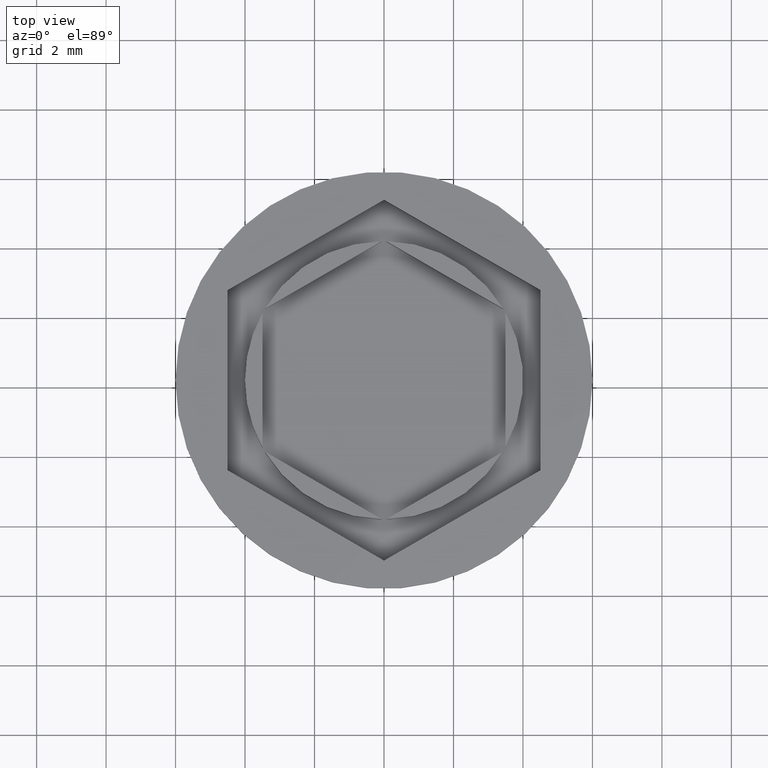
[diagram: clean part render]
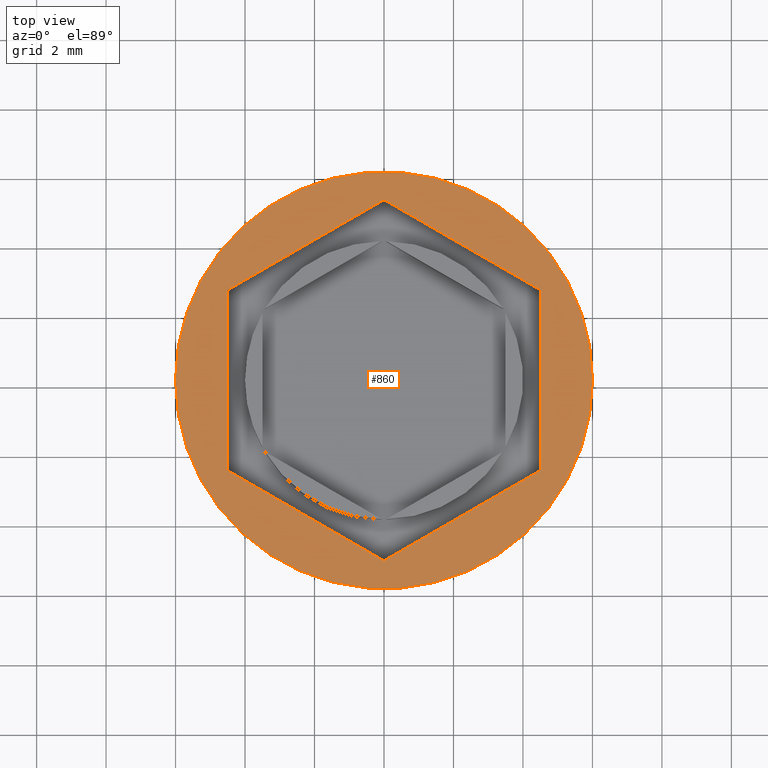
[diagram: same view with one face highlighted and labeled with its STEP entity id]
A machine part, top view. The second image highlights one B-rep face of the part: STEP entity #860.
In plain terms, the highlighted planar face has unit normal (0, -0, 1).
Its self-contained STEP definition (entity closure, byte-faithful):
#82 = CARTESIAN_POINT ( 'NONE',  ( 0.000000000000000000, 0.000000000000000000, 0.000000000000000000 ) ) ;
#89 = CARTESIAN_POINT ( 'NONE',  ( 0.000000000000000000, 5.196152422706632912, 0.000000000000000000 ) ) ;
#103 = ORIENTED_EDGE ( 'NONE', *, *, #769, .F. ) ;
#158 = CARTESIAN_POINT ( 'NONE',  ( -4.500000000000000888, -2.598076211353316456, 0.000000000000000000 ) ) ;
#170 = CARTESIAN_POINT ( 'NONE',  ( 4.500000000000000888, 2.598076211353317344, 0.000000000000000000 ) ) ;
#211 = LINE ( 'NONE', #1472, #890 ) ;
#299 = DIRECTION ( 'NONE',  ( -0.8660254037844387076, 0.4999999999999998335, 0.000000000000000000 ) ) ;
#338 = VERTEX_POINT ( 'NONE', #1825 ) ;
#342 = VECTOR ( 'NONE', #1465, 1000.000000000000000 ) ;
#383 = DIRECTION ( 'NONE',  ( 0.8660254037844385966, 0.5000000000000001110, 0.000000000000000000 ) ) ;
#431 = VERTEX_POINT ( 'NONE', #1549 ) ;
#503 = CARTESIAN_POINT ( 'NONE',  ( 6.000000000000000000, 0.000000000000000000, 0.000000000000000000 ) ) ;
#508 = DIRECTION ( 'NONE',  ( 1.000000000000000000, 0.000000000000000000, 0.000000000000000000 ) ) ;
#524 = FACE_BOUND ( 'NONE', #1684, .T. ) ;
#541 = ORIENTED_EDGE ( 'NONE', *, *, #1888, .F. ) ;
#571 = VECTOR ( 'NONE', #1845, 1000.000000000000227 ) ;
#572 = CARTESIAN_POINT ( 'NONE',  ( 4.500000000000000888, -2.598076211353316012, 0.000000000000000000 ) ) ;
#577 = VERTEX_POINT ( 'NONE', #1586 ) ;
#581 = CARTESIAN_POINT ( 'NONE',  ( -3.394223061414856671E-17, -5.196152422706632912, 0.000000000000000000 ) ) ;
#601 = CIRCLE ( 'NONE', #856, 6.000000000000000000 ) ;
#617 = VERTEX_POINT ( 'NONE', #572 ) ;
#679 = VERTEX_POINT ( 'NONE', #581 ) ;
#698 = LINE ( 'NONE', #89, #1588 ) ;
#737 = DIRECTION ( 'NONE',  ( -0.000000000000000000, -0.000000000000000000, 1.000000000000000000 ) ) ;
#745 = CARTESIAN_POINT ( 'NONE',  ( 4.500000000000000888, 2.598076211353317344, 0.000000000000000000 ) ) ;
#769 = EDGE_CURVE ( 'NONE', #338, #679, #1565, .T. ) ;
#780 = CARTESIAN_POINT ( 'NONE',  ( -4.500000000000000888, 2.598076211353315568, 0.000000000000000000 ) ) ;
#856 = AXIS2_PLACEMENT_3D ( 'NONE', #1059, #737, #1669 ) ;
#860 = ADVANCED_FACE ( 'NONE', ( #524, #1736 ), #1600, .T. ) ;
#885 = EDGE_CURVE ( 'NONE', #617, #1073, #1928, .T. ) ;
#890 = VECTOR ( 'NONE', #1415, 1000.000000000000000 ) ;
#899 = DIRECTION ( 'NONE',  ( 1.000000000000000000, 0.000000000000000000, 0.000000000000000000 ) ) ;
#995 = AXIS2_PLACEMENT_3D ( 'NONE', #1497, #1290, #899 ) ;
#996 = LINE ( 'NONE', #1758, #1539 ) ;
#1030 = EDGE_CURVE ( 'NONE', #577, #1719, #601, .T. ) ;
#1059 = CARTESIAN_POINT ( 'NONE',  ( 0.000000000000000000, 0.000000000000000000, 0.000000000000000000 ) ) ;
#1073 = VERTEX_POINT ( 'NONE', #170 ) ;
#1092 = ORIENTED_EDGE ( 'NONE', *, *, #1030, .T. ) ;
#1099 = ORIENTED_EDGE ( 'NONE', *, *, #1105, .F. ) ;
#1105 = EDGE_CURVE ( 'NONE', #1657, #338, #211, .T. ) ;
#1290 = DIRECTION ( 'NONE',  ( -0.000000000000000000, -0.000000000000000000, 1.000000000000000000 ) ) ;
#1300 = EDGE_CURVE ( 'NONE', #1719, #577, #1865, .T. ) ;
#1336 = EDGE_CURVE ( 'NONE', #679, #617, #996, .T. ) ;
#1380 = ORIENTED_EDGE ( 'NONE', *, *, #1643, .F. ) ;
#1415 = DIRECTION ( 'NONE',  ( 0.000000000000000000, -1.000000000000000000, 0.000000000000000000 ) ) ;
#1421 = ORIENTED_EDGE ( 'NONE', *, *, #1300, .T. ) ;
#1465 = DIRECTION ( 'NONE',  ( 0.000000000000000000, 1.000000000000000000, 0.000000000000000000 ) ) ;
#1472 = CARTESIAN_POINT ( 'NONE',  ( -4.500000000000000888, 2.598076211353315568, 0.000000000000000000 ) ) ;
#1497 = CARTESIAN_POINT ( 'NONE',  ( 0.000000000000000000, 0.000000000000000000, 0.000000000000000000 ) ) ;
#1514 = LINE ( 'NONE', #745, #1945 ) ;
#1539 = VECTOR ( 'NONE', #383, 1000.000000000000000 ) ;
#1549 = CARTESIAN_POINT ( 'NONE',  ( 0.000000000000000000, 5.196152422706632912, 0.000000000000000000 ) ) ;
#1565 = LINE ( 'NONE', #158, #571 ) ;
#1581 = CARTESIAN_POINT ( 'NONE',  ( 4.500000000000000888, -2.598076211353316012, 0.000000000000000000 ) ) ;
#1586 = CARTESIAN_POINT ( 'NONE',  ( -6.000000000000000000, 7.347880794884119736E-16, 0.000000000000000000 ) ) ;
#1588 = VECTOR ( 'NONE', #1777, 1000.000000000000227 ) ;
#1590 = DIRECTION ( 'NONE',  ( 0.000000000000000000, -0.000000000000000000, 1.000000000000000000 ) ) ;
#1600 = PLANE ( 'NONE',  #1817 ) ;
#1643 = EDGE_CURVE ( 'NONE', #1073, #431, #1514, .T. ) ;
#1657 = VERTEX_POINT ( 'NONE', #780 ) ;
#1669 = DIRECTION ( 'NONE',  ( 1.000000000000000000, 0.000000000000000000, 0.000000000000000000 ) ) ;
#1684 = EDGE_LOOP ( 'NONE', ( #1380, #1892, #1994, #103, #1099, #541 ) ) ;
#1719 = VERTEX_POINT ( 'NONE', #503 ) ;
#1736 = FACE_OUTER_BOUND ( 'NONE', #1827, .T. ) ;
#1758 = CARTESIAN_POINT ( 'NONE',  ( -3.394223061414856671E-17, -5.196152422706632912, 0.000000000000000000 ) ) ;
#1777 = DIRECTION ( 'NONE',  ( -0.8660254037844384856, -0.5000000000000001110, 0.000000000000000000 ) ) ;
#1817 = AXIS2_PLACEMENT_3D ( 'NONE', #82, #1590, #508 ) ;
#1825 = CARTESIAN_POINT ( 'NONE',  ( -4.500000000000000888, -2.598076211353316456, 0.000000000000000000 ) ) ;
#1827 = EDGE_LOOP ( 'NONE', ( #1421, #1092 ) ) ;
#1845 = DIRECTION ( 'NONE',  ( 0.8660254037844385966, -0.5000000000000000000, 0.000000000000000000 ) ) ;
#1865 = CIRCLE ( 'NONE', #995, 6.000000000000000000 ) ;
#1888 = EDGE_CURVE ( 'NONE', #431, #1657, #698, .T. ) ;
#1892 = ORIENTED_EDGE ( 'NONE', *, *, #885, .F. ) ;
#1928 = LINE ( 'NONE', #1581, #342 ) ;
#1945 = VECTOR ( 'NONE', #299, 1000.000000000000114 ) ;
#1994 = ORIENTED_EDGE ( 'NONE', *, *, #1336, .F. ) ;